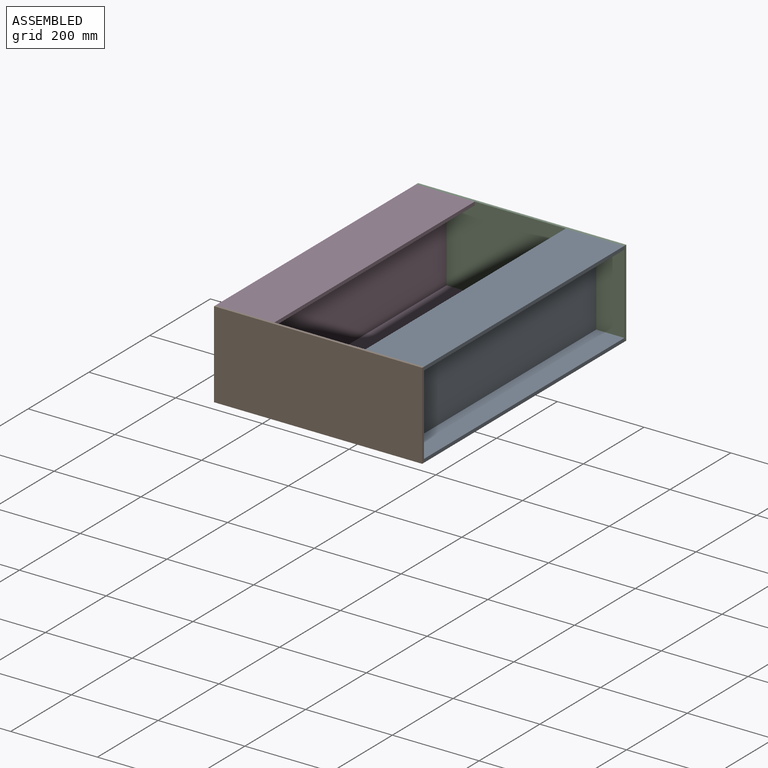
[diagram: assembled view]
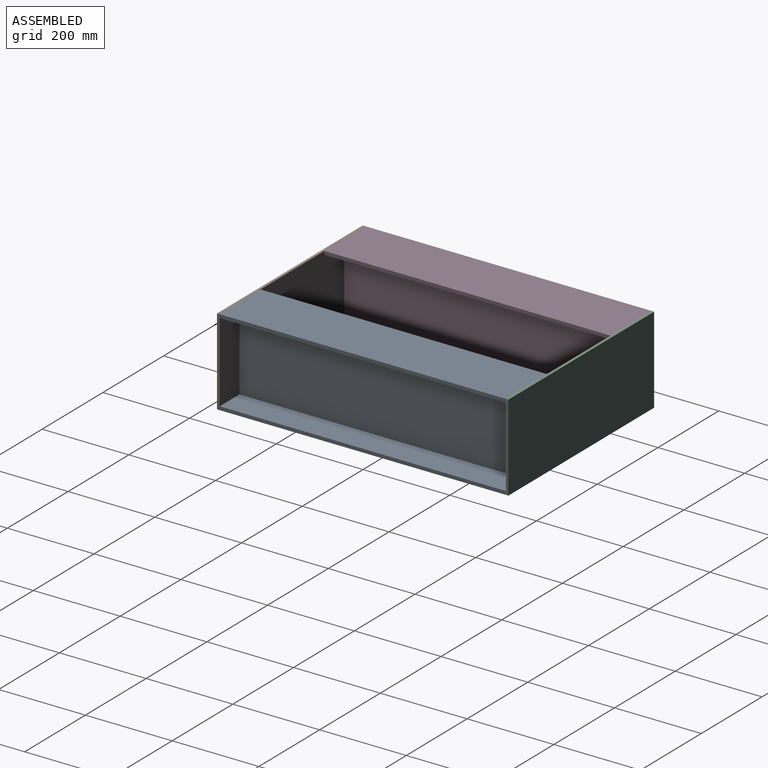
[diagram: assembled view, second angle]
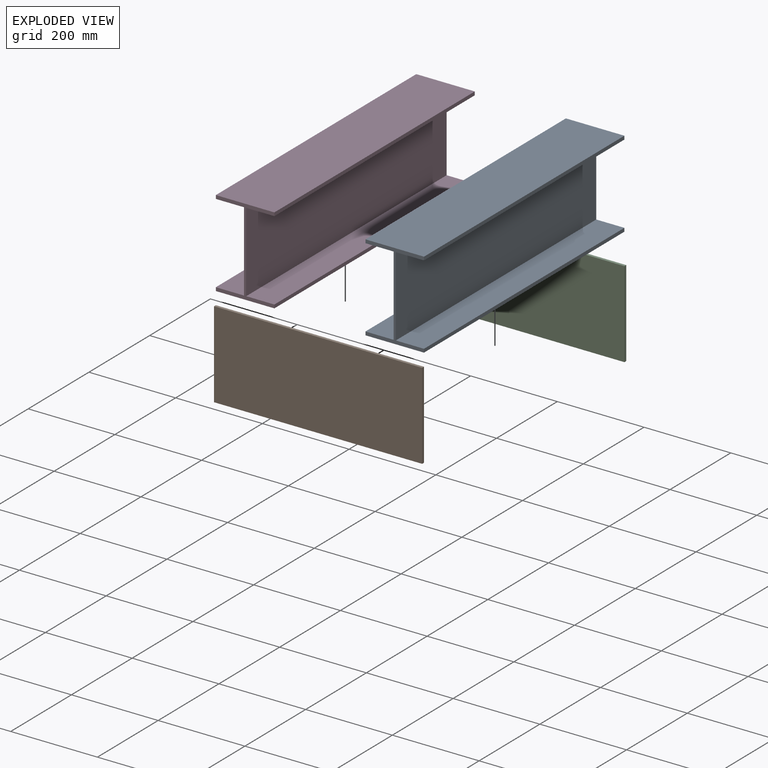
[diagram: exploded view]
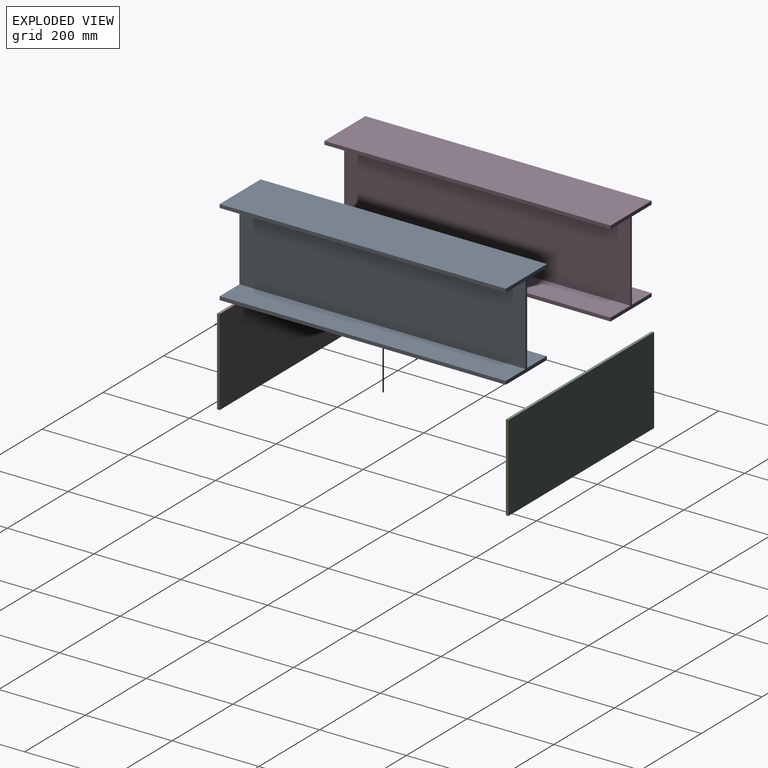
[diagram: exploded view, second angle]
ASSEMBLY  parts=4 mates=9
PART A: 14 faces, bbox 135x660x200 mm
  f0: plane 660x135mm, normal (0,0,1), area 89100mm2, adj f1,f11,f12,f13
  f1: plane 660x8mm, normal (-1,0,0), area 5280mm2, adj f0,f2,f12,f13
  f2: plane 660x65mm, normal (0,0,-1), area 42900mm2, adj f1,f3,f12,f13
  f3: plane 660x184mm, normal (-1,0,0), area 121440mm2, adj f2,f4,f12,f13
  f4: plane 660x65mm, normal (0,0,1), area 42900mm2, adj f3,f5,f12,f13
  f5: plane 660x8mm, normal (-1,0,0), area 5280mm2, adj f4,f6,f12,f13
  f6: plane 660x135mm, normal (0,0,-1), area 89100mm2, adj f5,f7,f12,f13
  f7: plane 660x8mm, normal (1,0,0), area 5280mm2, adj f6,f8,f12,f13
  f8: plane 660x65mm, normal (0,0,1), area 42900mm2, adj f7,f9,f12,f13
  f9: plane 660x184mm, normal (1,0,0), area 121440mm2, adj f8,f10,f12,f13
  f10: plane 660x65mm, normal (0,0,-1), area 42900mm2, adj f9,f11,f12,f13
  f11: plane 660x8mm, normal (1,0,0), area 5280mm2, adj f0,f10,f12,f13
  f12: plane 200x135mm, normal (0,-1,0), area 3080mm2, adj f0,f1,f2,f3,f4,f5,f6,f7
  f13: plane 200x135mm, normal (0,1,0), area 3080mm2, adj f0,f1,f2,f3,f4,f5,f6,f7
PART B: 6 faces, bbox 480x6x200 mm
  f0: plane 480x6mm, normal (0,0,1), area 2880mm2, adj f1,f3,f4,f5
  f1: plane 200x6mm, normal (-1,0,0), area 1200mm2, adj f0,f2,f4,f5
  f2: plane 480x6mm, normal (0,0,-1), area 2880mm2, adj f1,f3,f4,f5
  f3: plane 200x6mm, normal (1,0,0), area 1200mm2, adj f0,f2,f4,f5
  f4: plane 480x200mm, normal (0,-1,0), area 96000mm2, adj f0,f1,f2,f3
  f5: plane 480x200mm, normal (0,1,0), area 96000mm2, adj f0,f1,f2,f3
PART C: same geometry as B
PART D: same geometry as A
PLACE A t=(-220.32,452.46,-110.25)mm
PLACE B t=(-392.82,122.46,-210.25)mm
PLACE C t=(-392.82,788.46,-210.25)mm
PLACE D t=(-565.32,452.46,-110.25)mm
MATE planar B.f0 <-> D.f0  axis (0,0,1) through (-392.82,119.46,-110.25)mm
MATE planar C.f0 <-> D.f0  axis (0,0,1) through (-392.82,785.46,-110.25)mm
MATE planar C.f4 <-> D.f13  axis (0,-1,0) through (-392.82,782.46,-210.25)mm
MATE planar B.f1 <-> D.f1  axis (-1,0,0) through (-632.82,119.46,-210.25)mm
MATE planar D.f12 <-> B.f5  axis (0,-1,0) through (-565.32,122.46,-210.25)mm
MATE planar A.f0 <-> B.f0  axis (0,0,1) through (-220.32,452.46,-110.25)mm
MATE planar A.f12 <-> B.f5  axis (0,-1,0) through (-220.32,122.46,-210.25)mm
MATE planar C.f3 <-> A.f11  axis (1,0,0) through (-152.82,785.46,-210.25)mm
MATE planar A.f11 <-> B.f3  axis (1,0,0) through (-152.82,452.46,-114.25)mm
